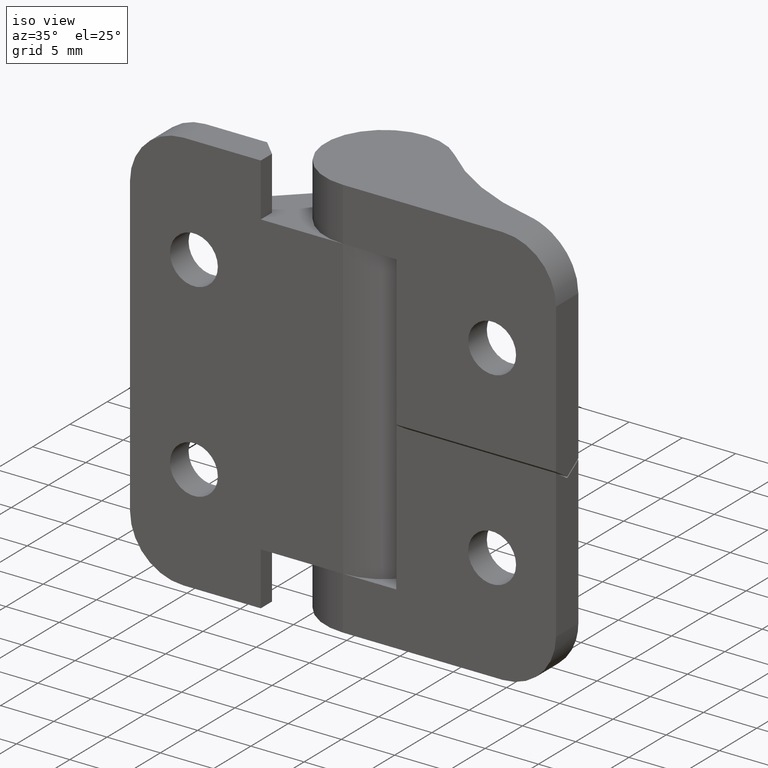
[diagram: clean part render]
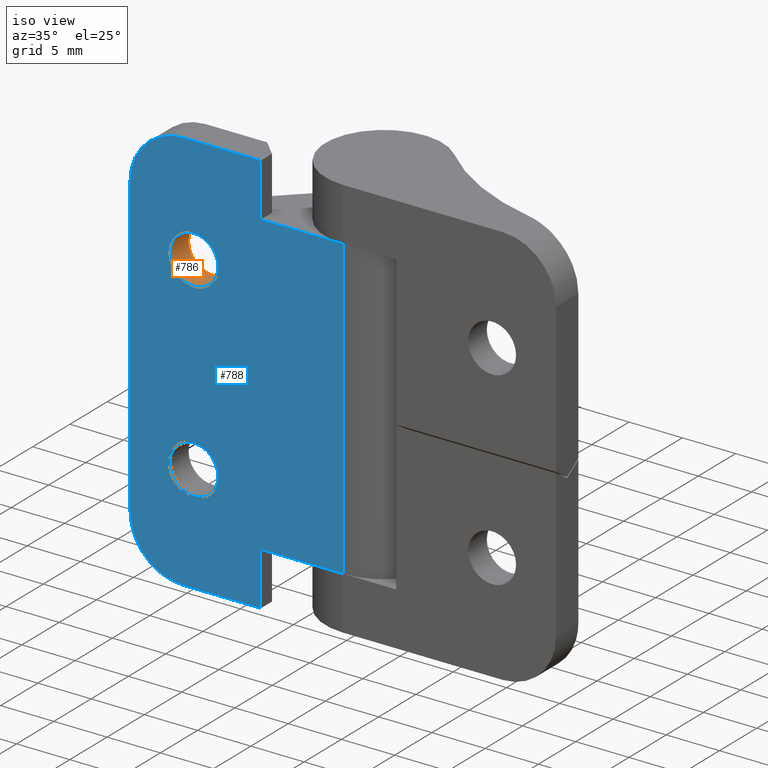
[diagram: same view with the hole feature highlighted: cylindrical wall and planar end face, labeled with their STEP entity ids]
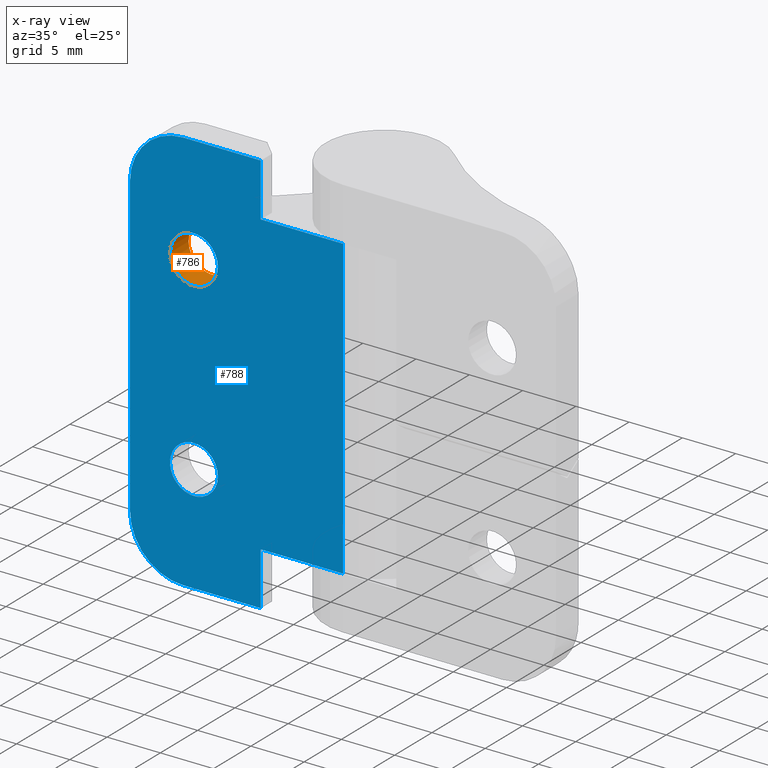
[diagram: x-ray of the same camera — body ghosted, the hole faces saturated]
A machine part, iso view. The highlighted faces form one hole feature of diameter 4.5 mm: the cylindrical wall (entity #786, orange) and its adjacent planar end face (entity #788, blue) — they share a circular edge in the B-rep.
The next image is the same camera in x-ray (body ghosted, the hole faces saturated) — the bore reads through the body.
Wall:
#43=FACE_BOUND('',#287,.T.);
#234=FACE_OUTER_BOUND('',#286,.T.);
#286=EDGE_LOOP('',(#577));
#287=EDGE_LOOP('',(#578));
#346=CIRCLE('',#847,2.25);
#347=CIRCLE('',#849,2.25);
#388=VERTEX_POINT('',#1200);
#389=VERTEX_POINT('',#1203);
#464=EDGE_CURVE('',#388,#388,#346,.T.);
#465=EDGE_CURVE('',#389,#389,#347,.T.);
#577=ORIENTED_EDGE('',*,*,#465,.F.);
#578=ORIENTED_EDGE('',*,*,#464,.T.);
#768=CYLINDRICAL_SURFACE('',#848,2.25);
#786=ADVANCED_FACE('',(#234,#43),#768,.F.);
#847=AXIS2_PLACEMENT_3D('',#1201,#958,#959);
#848=AXIS2_PLACEMENT_3D('',#1202,#960,#961);
#849=AXIS2_PLACEMENT_3D('',#1204,#962,#963);
#958=DIRECTION('center_axis',(-4.09029535388216E-16,1.,0.));
#959=DIRECTION('ref_axis',(1.,4.09029535388216E-16,0.));
#960=DIRECTION('center_axis',(-4.09029535388216E-16,1.,0.));
#961=DIRECTION('ref_axis',(1.,4.09029535388216E-16,0.));
#962=DIRECTION('center_axis',(-4.9960036108132E-16,1.,0.));
#963=DIRECTION('ref_axis',(1.,4.9960036108132E-16,0.));
#1200=CARTESIAN_POINT('',(-11.75,-3.00000000000001,8.9));
#1201=CARTESIAN_POINT('Origin',(-14.,-3.00000000000001,8.9));
#1202=CARTESIAN_POINT('Origin',(-14.,-49.5664423979548,8.9));
#1203=CARTESIAN_POINT('',(-16.25,-5.50000000000002,8.9));
#1204=CARTESIAN_POINT('Origin',(-14.,-5.50000000000002,8.9));
End face:
#44=FACE_BOUND('',#290,.T.);
#45=FACE_BOUND('',#291,.T.);
#66=LINE('',#1213,#139);
#67=LINE('',#1217,#140);
#68=LINE('',#1219,#141);
#69=LINE('',#1221,#142);
#70=LINE('',#1223,#143);
#71=LINE('',#1225,#144);
#72=LINE('',#1227,#145);
#73=LINE('',#1228,#146);
#139=VECTOR('',#972,28.);
#140=VECTOR('',#975,7.28);
#141=VECTOR('',#976,5.);
#142=VECTOR('',#977,7.72);
#143=VECTOR('',#978,28.);
#144=VECTOR('',#979,7.72);
#145=VECTOR('',#980,5.);
#146=VECTOR('',#981,7.28);
#201=PLANE('',#852);
#236=FACE_OUTER_BOUND('',#289,.T.);
#289=EDGE_LOOP('',(#583,#584,#585,#586,#587,#588,#589,#590,#591,#592));
#290=EDGE_LOOP('',(#593));
#291=EDGE_LOOP('',(#594));
#345=CIRCLE('',#845,2.25);
#347=CIRCLE('',#849,2.25);
#348=CIRCLE('',#851,5.);
#349=CIRCLE('',#853,5.);
#387=VERTEX_POINT('',#1197);
#389=VERTEX_POINT('',#1203);
#390=VERTEX_POINT('',#1206);
#391=VERTEX_POINT('',#1207);
#392=VERTEX_POINT('',#1212);
#393=VERTEX_POINT('',#1214);
#394=VERTEX_POINT('',#1216);
#395=VERTEX_POINT('',#1218);
#396=VERTEX_POINT('',#1220);
#397=VERTEX_POINT('',#1222);
#398=VERTEX_POINT('',#1224);
#399=VERTEX_POINT('',#1226);
#463=EDGE_CURVE('',#387,#387,#345,.T.);
#465=EDGE_CURVE('',#389,#389,#347,.T.);
#466=EDGE_CURVE('',#390,#391,#348,.T.);
#469=EDGE_CURVE('',#392,#390,#66,.T.);
#470=EDGE_CURVE('',#393,#392,#349,.T.);
#471=EDGE_CURVE('',#394,#393,#67,.T.);
#472=EDGE_CURVE('',#394,#395,#68,.T.);
#473=EDGE_CURVE('',#395,#396,#69,.T.);
#474=EDGE_CURVE('',#396,#397,#70,.T.);
#475=EDGE_CURVE('',#397,#398,#71,.T.);
#476=EDGE_CURVE('',#398,#399,#72,.T.);
#477=EDGE_CURVE('',#391,#399,#73,.T.);
#583=ORIENTED_EDGE('',*,*,#466,.F.);
#584=ORIENTED_EDGE('',*,*,#469,.F.);
#585=ORIENTED_EDGE('',*,*,#470,.F.);
#586=ORIENTED_EDGE('',*,*,#471,.F.);
#587=ORIENTED_EDGE('',*,*,#472,.T.);
#588=ORIENTED_EDGE('',*,*,#473,.T.);
#589=ORIENTED_EDGE('',*,*,#474,.T.);
#590=ORIENTED_EDGE('',*,*,#475,.T.);
#591=ORIENTED_EDGE('',*,*,#476,.T.);
#592=ORIENTED_EDGE('',*,*,#477,.F.);
#593=ORIENTED_EDGE('',*,*,#463,.T.);
#594=ORIENTED_EDGE('',*,*,#465,.T.);
#788=ADVANCED_FACE('',(#236,#44,#45),#201,.T.);
#845=AXIS2_PLACEMENT_3D('',#1198,#954,#955);
#849=AXIS2_PLACEMENT_3D('',#1204,#962,#963);
#851=AXIS2_PLACEMENT_3D('',#1208,#966,#967);
#852=AXIS2_PLACEMENT_3D('',#1211,#970,#971);
#853=AXIS2_PLACEMENT_3D('',#1215,#973,#974);
#954=DIRECTION('center_axis',(-4.9960036108132E-16,1.,0.));
#955=DIRECTION('ref_axis',(1.,4.9960036108132E-16,0.));
#962=DIRECTION('center_axis',(-4.9960036108132E-16,1.,0.));
#963=DIRECTION('ref_axis',(1.,4.9960036108132E-16,0.));
#966=DIRECTION('center_axis',(-4.9960036108132E-16,1.,0.));
#967=DIRECTION('ref_axis',(-0.707106781186548,-3.53270803203849E-16,0.707106781186548));
#970=DIRECTION('center_axis',(4.9960036108132E-16,-1.,0.));
#971=DIRECTION('ref_axis',(1.,8.88178419700125E-16,0.));
#972=DIRECTION('',(0.,0.,1.));
#973=DIRECTION('center_axis',(-4.9960036108132E-16,1.,0.));
#974=DIRECTION('ref_axis',(-0.707106781186548,-3.53270803203849E-16,-0.707106781186548));
#975=DIRECTION('',(-1.,-4.9960036108132E-16,0.));
#976=DIRECTION('',(0.,0.,1.));
#977=DIRECTION('',(1.,4.9960036108132E-16,0.));
#978=DIRECTION('',(0.,0.,1.));
#979=DIRECTION('',(-1.,-4.9960036108132E-16,0.));
#980=DIRECTION('',(0.,0.,1.));
#981=DIRECTION('',(1.,4.9960036108132E-16,0.));
#1197=CARTESIAN_POINT('',(-16.25,-5.50000000000002,-8.9));
#1198=CARTESIAN_POINT('Origin',(-14.,-5.50000000000002,-8.9));
#1203=CARTESIAN_POINT('',(-16.25,-5.50000000000002,8.9));
#1204=CARTESIAN_POINT('Origin',(-14.,-5.50000000000002,8.9));
#1206=CARTESIAN_POINT('',(-20.,-5.50000000000001,14.));
#1207=CARTESIAN_POINT('',(-15.,-5.50000000000001,19.));
#1208=CARTESIAN_POINT('Origin',(-15.,-5.50000000000001,14.));
#1211=CARTESIAN_POINT('Origin',(-20.,-5.50000000000001,0.));
#1212=CARTESIAN_POINT('',(-20.,-5.50000000000001,-14.));
#1213=CARTESIAN_POINT('',(-20.,-5.50000000000001,0.));
#1214=CARTESIAN_POINT('',(-15.,-5.50000000000001,-19.));
#1215=CARTESIAN_POINT('Origin',(-15.,-5.50000000000001,-14.));
#1216=CARTESIAN_POINT('',(-7.72,-5.50000000000001,-19.));
#1217=CARTESIAN_POINT('',(-20.,-5.50000000000001,-19.));
#1218=CARTESIAN_POINT('',(-7.72,-5.50000000000001,-14.));
#1219=CARTESIAN_POINT('',(-7.72,-5.50000000000001,-9.5));
#1220=CARTESIAN_POINT('',(2.77555756156289E-15,-5.5,-14.));
#1221=CARTESIAN_POINT('',(-11.3075980839077,-5.50000000000001,-14.));
#1222=CARTESIAN_POINT('',(2.77555756156289E-15,-5.5,14.));
#1223=CARTESIAN_POINT('',(2.69422295812418E-15,-5.5,0.));
#1224=CARTESIAN_POINT('',(-7.72,-5.50000000000001,14.));
#1225=CARTESIAN_POINT('',(-11.3075980839077,-5.50000000000001,14.));
#1226=CARTESIAN_POINT('',(-7.72,-5.50000000000001,19.));
#1227=CARTESIAN_POINT('',(-7.72,-5.50000000000001,9.5));
#1228=CARTESIAN_POINT('',(-20.,-5.50000000000001,19.));